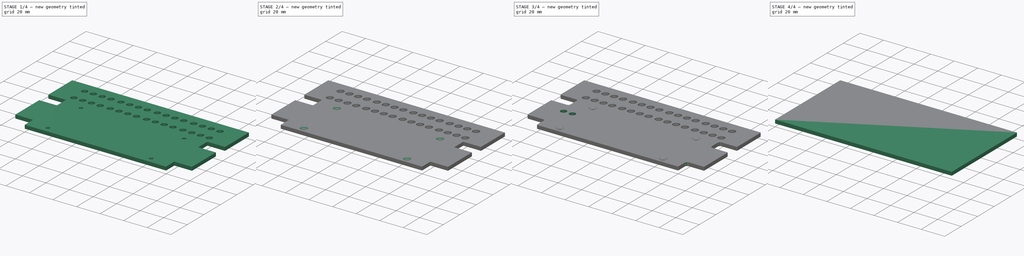
[diagram: build sequence overview — one tinted view per stage of 4, left to right]
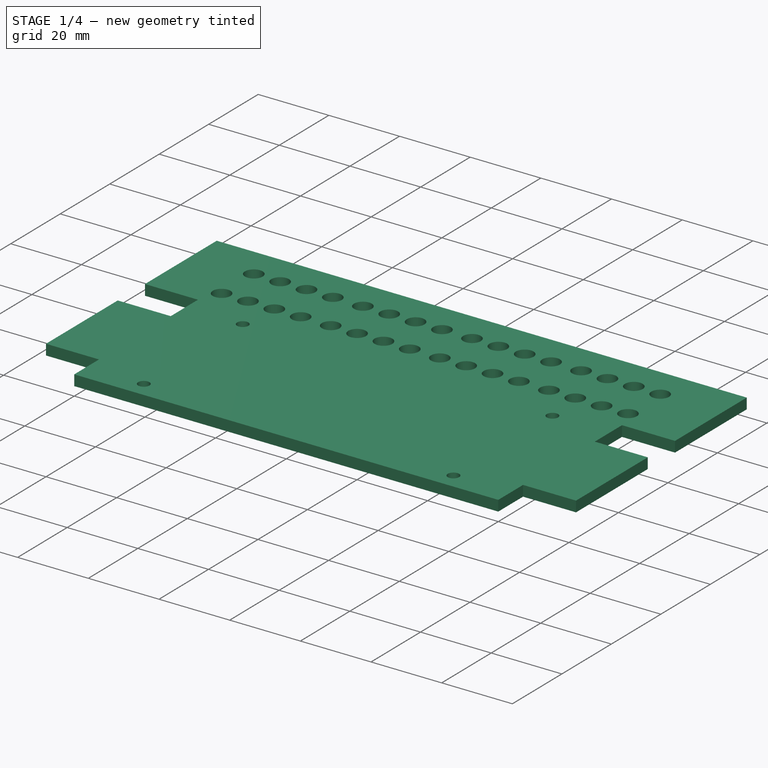
[diagram: stage 1 of 4 — iso view after this stage's code; geometry added in this stage tinted green]
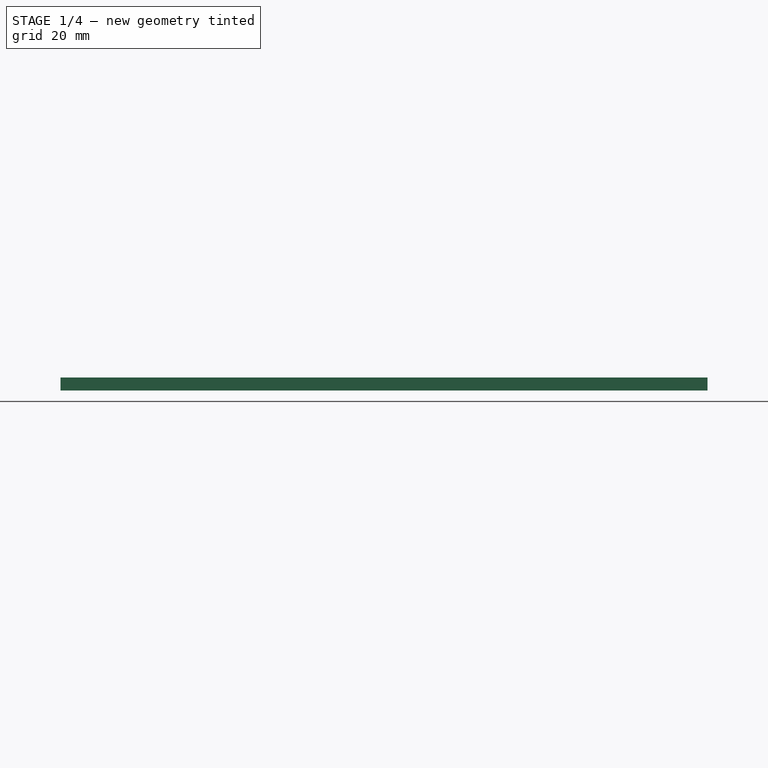
[diagram: stage 1 of 4 — front view after this stage's code; geometry added in this stage tinted green]
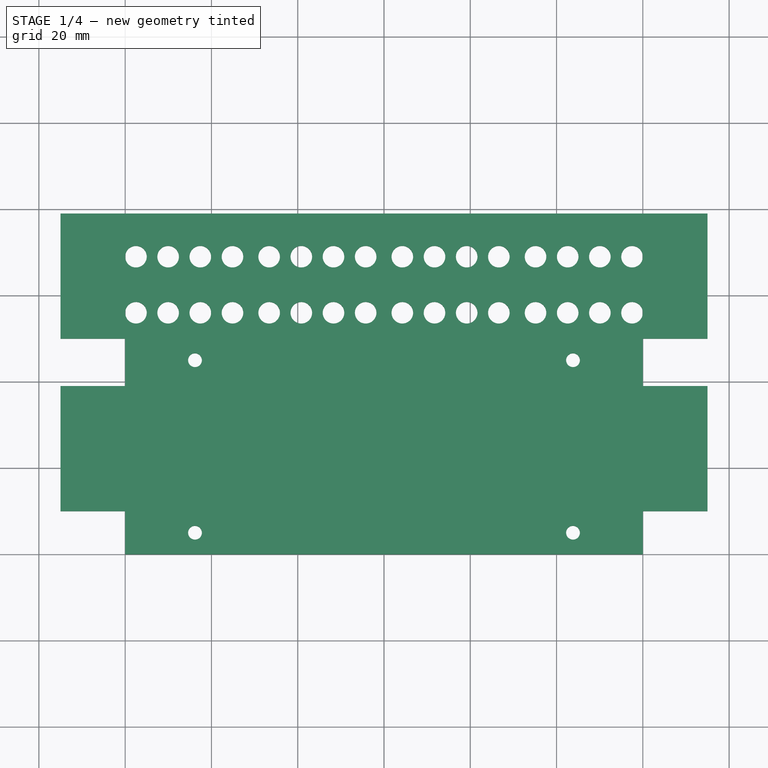
[diagram: stage 1 of 4 — top view after this stage's code; geometry added in this stage tinted green]
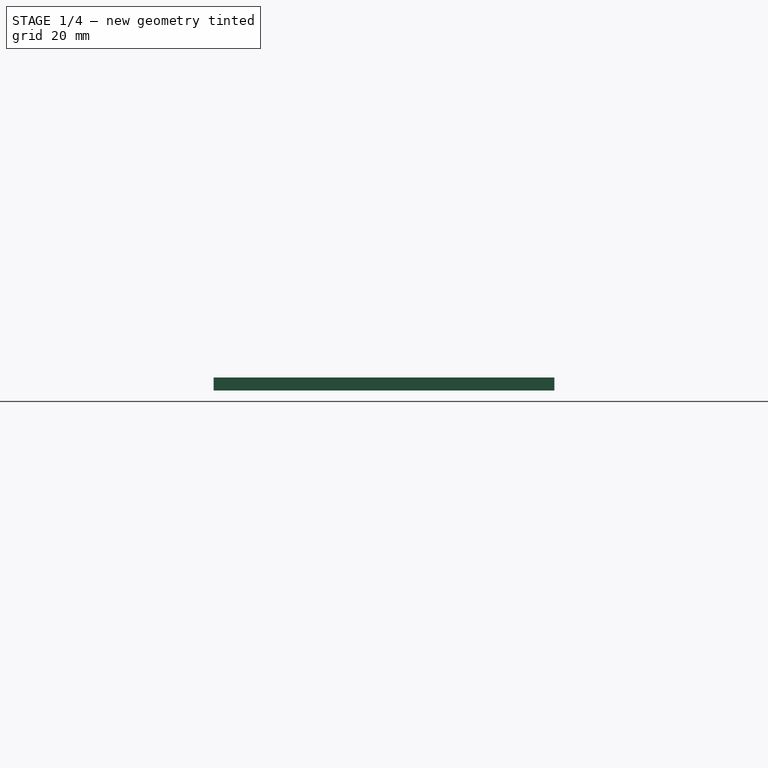
[diagram: stage 1 of 4 — right view after this stage's code; geometry added in this stage tinted green]
FCSTD DOCUMENT  (FreeCAD 0.19R23141 (Git))
Label: alu-panel
License: All rights reserved
LicenseURL: http://en.wikipedia.org/wiki/All_rights_reserved
objects: Sketcher::SketchObject×5, Path::FeaturePython×5, PartDesign::Pocket×4, PartDesign::LinearPattern×2, PartDesign::Fillet×2, Part::FeaturePython×2, PartDesign::Pad×1, PartDesign::Chamfer×1, App::FeaturePython×1, PartDesign::Body×1, App::DocumentObjectGroup×1, Path::FeatureCompoundPython×1
note: 29 computed .brp shape members not serialized (recipe doc carries the construction recipe); baked Part::Feature solids carry a one-line shape summary decoded from their .brp

FEATURE [Sketcher::SketchObject] Sketch
  MapMode = 5
  Support = -> [XY_Plane]
  sketch-geometry (20):
    g0: LineSegment StartX=-75 StartY=39 StartZ=0 EndX=-75 EndY=10 EndZ=0
    g1: LineSegment StartX=-75 StartY=10 StartZ=0 EndX=-60 EndY=10 EndZ=0
    g2: LineSegment StartX=-60 StartY=10 StartZ=0 EndX=-60 EndY=0 EndZ=0
    g3: LineSegment StartX=-60 StartY=0 StartZ=0 EndX=60 EndY=0 EndZ=0
    g4: LineSegment StartX=60 StartY=0 StartZ=0 EndX=60 EndY=10 EndZ=0
    g5: LineSegment StartX=60 StartY=10 StartZ=0 EndX=75 EndY=10 EndZ=0
    g6: LineSegment StartX=75 StartY=10 StartZ=0 EndX=75 EndY=39 EndZ=0
    g7: Circle CenterX=-43.815 CenterY=5 CenterZ=0 NormalX=0 NormalY=0 NormalZ=1 AngleXU=0 Radius=1.6
    g8: Circle CenterX=43.815 CenterY=5 CenterZ=0 NormalX=0 NormalY=0 NormalZ=1 AngleXU=0 Radius=1.6
    g9: LineSegment StartX=-75 StartY=39 StartZ=0 EndX=-60 EndY=39 EndZ=0
    g10: LineSegment StartX=-60 StartY=39 StartZ=0 EndX=-60 EndY=50 EndZ=0
    g11: LineSegment StartX=-60 StartY=50 StartZ=0 EndX=-75 EndY=50 EndZ=0
    g12: LineSegment StartX=-75 StartY=50 StartZ=0 EndX=-75 EndY=79 EndZ=0
    g13: LineSegment StartX=-75 StartY=79 StartZ=0 EndX=75 EndY=79 EndZ=0
    g14: LineSegment StartX=75 StartY=79 StartZ=0 EndX=75 EndY=50 EndZ=0
    g15: LineSegment StartX=75 StartY=50 StartZ=0 EndX=60 EndY=50 EndZ=0
    g16: LineSegment StartX=60 StartY=50 StartZ=0 EndX=60 EndY=39 EndZ=0
    g17: LineSegment StartX=60 StartY=39 StartZ=0 EndX=75 EndY=39 EndZ=0
    g18: Circle CenterX=-43.815 CenterY=45 CenterZ=0 NormalX=0 NormalY=0 NormalZ=1 AngleXU=0 Radius=1.6
    g19: Circle CenterX=43.815 CenterY=45 CenterZ=0 NormalX=0 NormalY=0 NormalZ=1 AngleXU=0 Radius=1.6
  constraints (55):
    c: Vertical(g0)
    c: Coincident(g0,g1)
    c: Horizontal(g1)
    c: Coincident(g1,g2)
    c: PointOnObject(g2,g-1)
    c: Vertical(g2)
    c: Coincident(g2,g3)
    c: PointOnObject(g3,g-1)
    c: Coincident(g3,g4)
    c: Vertical(g4)
    c: Coincident(g4,g5)
    c: Coincident(g5,g6)
    c: Symmetric(g1,g4,g-2)
    c: Symmetric(g0,g5,g-2)
    c: DistanceY(g-1,g0) = 39
    c: DistanceX(g0,g6) = 150
    c: Equal(g7,g8)
    c: Symmetric(g7,g8,g-2)
    c: Radius(g7) = 1.6
    c: DistanceX(g7,g8) = 87.63
    c: DistanceY(g2,g7) = 5
    c: DistanceY(g2,g2) = 10
    c: DistanceX(g1,g4) = 120
    c: DistanceX(g0,g7) = 31.185
    c: DistanceX(g0,g8) = 118.815
    c: Symmetric(g6,g0,g-2)
    c: Coincident(g0,g9)
    c: Horizontal(g9)
    c: Coincident(g9,g10)
    c: Vertical(g10)
    c: Coincident(g10,g11)
    c: Horizontal(g11)
    c: Coincident(g11,g12)
    c: Vertical(g12)
    c: Coincident(g12,g13)
    c: Horizontal(g13)
    c: Coincident(g13,g14)
    c: Vertical(g14)
    c: Coincident(g14,g15)
    c: Coincident(g15,g16)
    c: Coincident(g16,g17)
    c: Coincident(g17,g6)
    c: Vertical(g16)
    c: Horizontal(g15)
    c: Symmetric(g9,g16,g-2)
    c: Equal(g9,g1)
    c: Symmetric(g14,g11,g-2)
    c: Equal(g11,g9)
    c: Equal(g12,g0)
    c: DistanceY(g-1,g12) = 79
    c: Equal(g19,g18)
    c: Equal(g18,g7)
    c: Vertical(g18,g7)
    c: Symmetric(g19,g18,g-2)
    c: DistanceY(g18,g10) = 5
FEATURE [PartDesign::Pad] Pad
  Direction = (1,1,1)
  Length = 3
  Length2 = 100
  Profile = -> Sketch
  Refine = true
  Type = 0
FEATURE [Sketcher::SketchObject] Sketch001
  ExternalGeometry = -> [Pad]
  MapMode = 5
  Placement = pos=(0,0,3) rot=(0,0,1;0rad)
  Support = -> [Pad]
  sketch-geometry (31):
    g0: Circle CenterX=-57.5 CenterY=69 CenterZ=0 NormalX=0 NormalY=0 NormalZ=1 AngleXU=0 Radius=2.5
    g1: Circle CenterX=57.5 CenterY=69 CenterZ=0 NormalX=0 NormalY=0 NormalZ=1 AngleXU=0 Radius=2.5
    g2: Circle CenterX=-50.0417 CenterY=69 CenterZ=0 NormalX=0 NormalY=0 NormalZ=1 AngleXU=0 Radius=2.5
    g3: Circle CenterX=-42.5833 CenterY=69 CenterZ=0 NormalX=0 NormalY=0 NormalZ=1 AngleXU=0 Radius=2.5
    g4: Circle CenterX=-35.125 CenterY=69 CenterZ=0 NormalX=0 NormalY=0 NormalZ=1 AngleXU=0 Radius=2.5
    g5: Circle CenterX=-26.625 CenterY=69 CenterZ=0 NormalX=0 NormalY=0 NormalZ=1 AngleXU=0 Radius=2.5
    g6: Circle CenterX=-19.1667 CenterY=69 CenterZ=0 NormalX=0 NormalY=0 NormalZ=1 AngleXU=0 Radius=2.5
    g7: Circle CenterX=-11.7083 CenterY=69 CenterZ=0 NormalX=0 NormalY=0 NormalZ=1 AngleXU=0 Radius=2.5
    g8: Circle CenterX=-4.25 CenterY=69 CenterZ=0 NormalX=0 NormalY=0 NormalZ=1 AngleXU=0 Radius=2.5
    g9: Circle CenterX=4.25 CenterY=69 CenterZ=0 NormalX=0 NormalY=0 NormalZ=1 AngleXU=0 Radius=2.5
    g10: Circle CenterX=11.7083 CenterY=69 CenterZ=0 NormalX=0 NormalY=0 NormalZ=1 AngleXU=0 Radius=2.5
    g11: Circle CenterX=19.1667 CenterY=69 CenterZ=0 NormalX=0 NormalY=0 NormalZ=1 AngleXU=0 Radius=2.5
    g12: Circle CenterX=26.625 CenterY=69 CenterZ=0 NormalX=0 NormalY=0 NormalZ=1 AngleXU=0 Radius=2.5
    g13: Circle CenterX=35.125 CenterY=69 CenterZ=0 NormalX=0 NormalY=0 NormalZ=1 AngleXU=0 Radius=2.5
    g14: Circle CenterX=42.5833 CenterY=69 CenterZ=0 NormalX=0 NormalY=0 NormalZ=1 AngleXU=0 Radius=2.5
    g15: Circle CenterX=50.0417 CenterY=69 CenterZ=0 NormalX=0 NormalY=0 NormalZ=1 AngleXU=0 Radius=2.5
    g16: LineSegment [constr] StartX=-57.5 StartY=69 StartZ=0 EndX=-50.0417 EndY=69 EndZ=0
    g17: LineSegment [constr] StartX=-50.0417 StartY=69 StartZ=0 EndX=-42.5833 EndY=69 EndZ=0
    g18: LineSegment [constr] StartX=-42.5833 StartY=69 StartZ=0 EndX=-35.125 EndY=69 EndZ=0
    g19: LineSegment [constr] StartX=-35.125 StartY=69 StartZ=0 EndX=-26.625 EndY=69 EndZ=0
    g20: LineSegment [constr] StartX=-26.625 StartY=69 StartZ=0 EndX=-19.1667 EndY=69 EndZ=0
    g21: LineSegment [constr] StartX=-19.1667 StartY=69 StartZ=0 EndX=-11.7083 EndY=69 EndZ=0
    g22: LineSegment [constr] StartX=-11.7083 StartY=69 StartZ=0 EndX=-4.25 EndY=69 EndZ=0
    g23: LineSegment [constr] StartX=-4.25 StartY=69 StartZ=0 EndX=4.25 EndY=69 EndZ=0
    g24: LineSegment [constr] StartX=4.25 StartY=69 StartZ=0 EndX=11.7083 EndY=69 EndZ=0
    g25: LineSegment [constr] StartX=11.7083 StartY=69 StartZ=0 EndX=19.1667 EndY=69 EndZ=0
    g26: LineSegment [constr] StartX=19.1667 StartY=69 StartZ=0 EndX=26.625 EndY=69 EndZ=0
    g27: LineSegment [constr] StartX=26.625 StartY=69 StartZ=0 EndX=35.125 EndY=69 EndZ=0
    g28: LineSegment [constr] StartX=35.125 StartY=69 StartZ=0 EndX=42.5833 EndY=69 EndZ=0
    g29: LineSegment [constr] StartX=42.5833 StartY=69 StartZ=0 EndX=50.0417 EndY=69 EndZ=0
    g30: LineSegment [constr] StartX=50.0417 StartY=69 StartZ=0 EndX=57.5 EndY=69 EndZ=0
  constraints (78):
    c: Symmetric(g1,g0,g-2)
    c: DistanceX(g0,g1) = 115
    c: Equal(g1,g15)
    c: Equal(g15,g14)
    c: Equal(g14,g13)
    c: Equal(g13,g12)
    c: Equal(g12,g11)
    c: Equal(g11,g10)
    c: Equal(g10,g9)
    c: Equal(g9,g8)
    c: Equal(g8,g7)
    c: Equal(g7,g6)
    c: Equal(g6,g5)
    c: Equal(g5,g4)
    c: Equal(g4,g3)
    c: Equal(g3,g2)
    c: Equal(g2,g0)
    c: Coincident(g16,g0)
    c: Coincident(g16,g2)
    c: Horizontal(g16)
    c: Coincident(g17,g2)
    c: Coincident(g17,g3)
    c: Horizontal(g17)
    c: Coincident(g17,g18)
    c: Coincident(g18,g4)
    c: Coincident(g18,g19)
    c: Coincident(g19,g5)
    c: Coincident(g19,g20)
    c: Coincident(g20,g6)
    c: Coincident(g20,g21)
    c: Coincident(g21,g7)
    c: Coincident(g21,g22)
    c: Coincident(g22,g8)
    c: Coincident(g22,g23)
    c: Coincident(g23,g9)
    c: Coincident(g23,g24)
    c: Coincident(g24,g10)
    c: Coincident(g24,g25)
    c: Coincident(g25,g11)
    c: Coincident(g25,g26)
    c: Coincident(g26,g12)
    c: Coincident(g26,g27)
    c: Coincident(g27,g13)
    c: Horizontal(g27)
    c: Coincident(g27,g28)
    c: Coincident(g28,g14)
    c: Coincident(g28,g29)
    c: Coincident(g29,g15)
    c: Coincident(g29,g30)
    c: Coincident(g30,g1)
    c: Horizontal(g30)
    c: Equal(g16,g17)
    c: Equal(g17,g18)
    c: Equal(g20,g21)
    c: Equal(g21,g22)
    c: Equal(g24,g25)
    c: Equal(g25,g26)
    c: Equal(g28,g29)
    c: Equal(g29,g30)
    c: Horizontal(g18)
    c: Horizontal(g20)
    c: Horizontal(g19)
    c: Horizontal(g22)
    c: Horizontal(g21)
    c: Horizontal(g23)
    c: Horizontal(g24)
    c: Horizontal(g25)
    c: Horizontal(g26)
    c: Horizontal(g28)
    c: Equal(g16,g20)
    c: Equal(g20,g24)
    c: Equal(g24,g28)
    c: Equal(g19,g23)
    c: Equal(g23,g27)
    c: DistanceX(g19,g19) = 8.5
    c: Radius(g0) = 2.5
    c: DistanceX(g16,g16) = 7.45833
    c: DistanceY(g0,g-3) = 10
FEATURE [PartDesign::Pocket] Pocket
  BaseFeature = -> Pad
  Length = 5
  Length2 = 100
  Profile = -> Sketch001
  Refine = true
  Type = 1
FEATURE [PartDesign::LinearPattern] LinearPattern
  BaseFeature = -> Pocket
  Direction = -> Sketch001 [V_Axis]
  Length = 13
  Occurrences = 2
  Originals = -> [Pocket]
  Refine = true
  Reversed = true
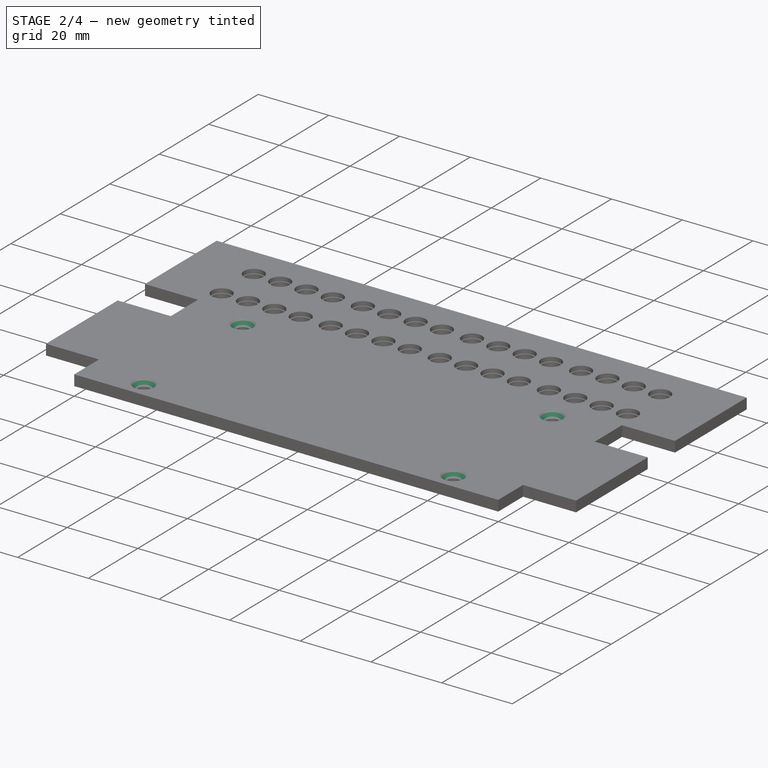
[diagram: stage 2 of 4 — iso view after this stage's code; geometry added in this stage tinted green]
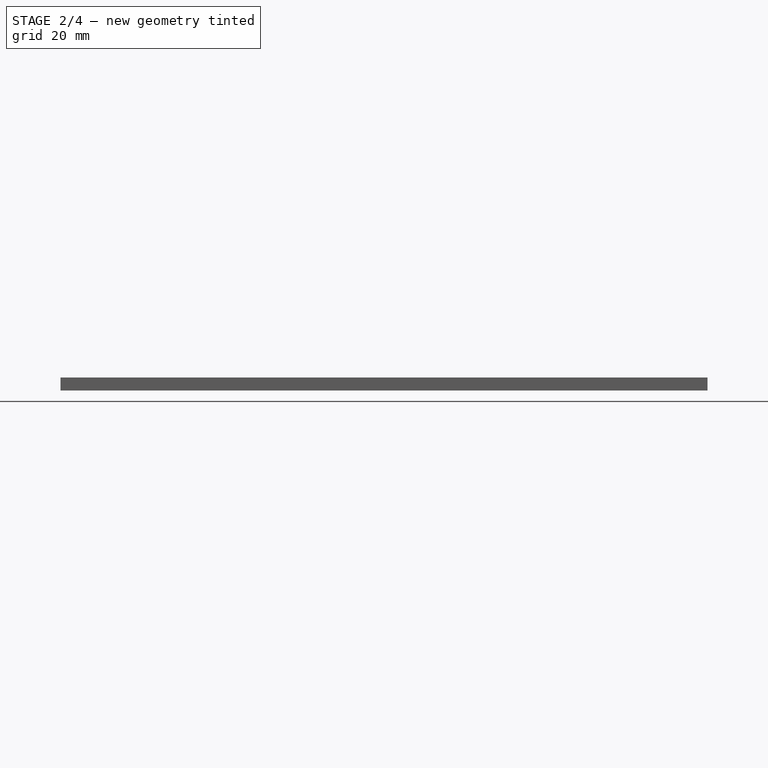
[diagram: stage 2 of 4 — front view after this stage's code; geometry added in this stage tinted green]
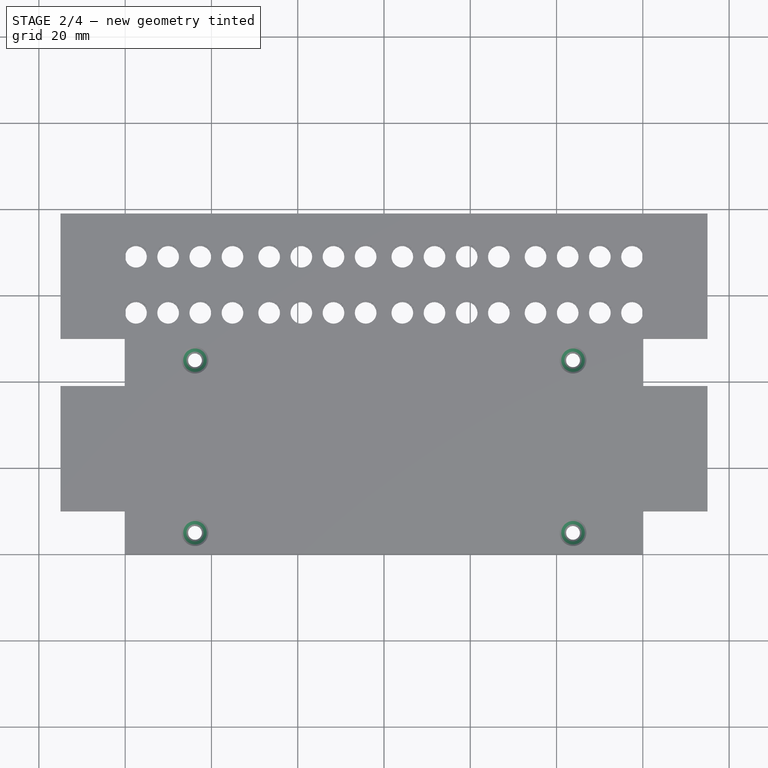
[diagram: stage 2 of 4 — top view after this stage's code; geometry added in this stage tinted green]
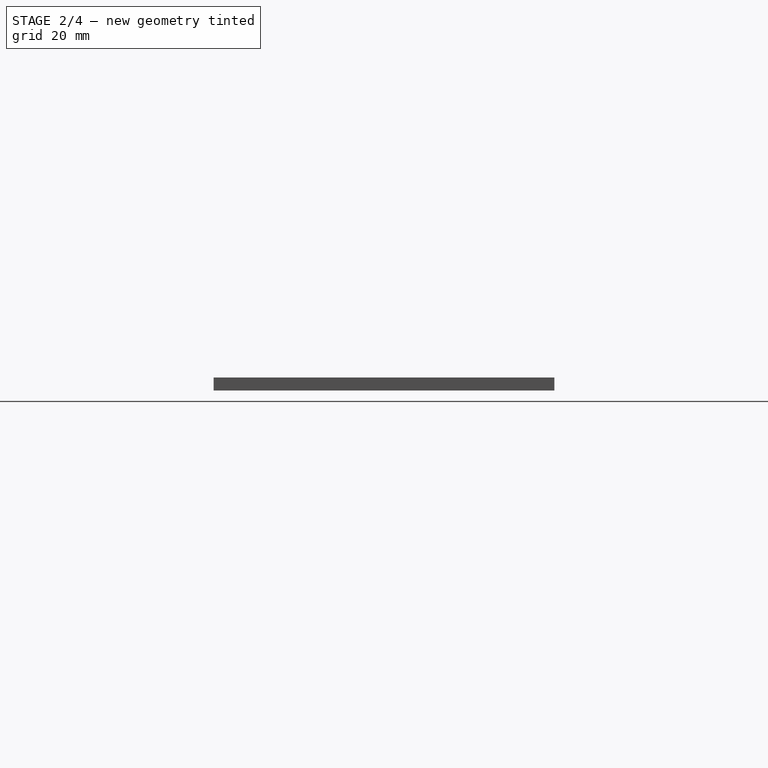
[diagram: stage 2 of 4 — right view after this stage's code; geometry added in this stage tinted green]
FEATURE [Sketcher::SketchObject] Sketch002
  ExternalGeometry = -> [Pad]
  MapMode = 5
  Placement = pos=(0,0,3) rot=(0,0,1;0rad)
  Support = -> [Pad]
  sketch-geometry (31):
    g0: Circle CenterX=-57.5 CenterY=69 CenterZ=0 NormalX=0 NormalY=0 NormalZ=1 AngleXU=0 Radius=2.8
    g1: Circle CenterX=-50.0417 CenterY=69 CenterZ=0 NormalX=0 NormalY=0 NormalZ=1 AngleXU=0 Radius=2.8
    g2: Circle CenterX=-42.5833 CenterY=69 CenterZ=0 NormalX=0 NormalY=0 NormalZ=1 AngleXU=0 Radius=2.8
    g3: Circle CenterX=-35.125 CenterY=69 CenterZ=0 NormalX=0 NormalY=0 NormalZ=1 AngleXU=0 Radius=2.8
    g4: Circle CenterX=-26.625 CenterY=69 CenterZ=0 NormalX=0 NormalY=0 NormalZ=1 AngleXU=0 Radius=2.8
    g5: Circle CenterX=-19.1667 CenterY=69 CenterZ=0 NormalX=0 NormalY=0 NormalZ=1 AngleXU=0 Radius=2.8
    g6: Circle CenterX=-11.7083 CenterY=69 CenterZ=0 NormalX=0 NormalY=0 NormalZ=1 AngleXU=0 Radius=2.8
    g7: Circle CenterX=-4.25 CenterY=69 CenterZ=0 NormalX=0 NormalY=0 NormalZ=1 AngleXU=0 Radius=2.8
    g8: Circle CenterX=4.25 CenterY=69 CenterZ=0 NormalX=0 NormalY=0 NormalZ=1 AngleXU=0 Radius=2.8
    g9: Circle CenterX=11.7083 CenterY=69 CenterZ=0 NormalX=0 NormalY=0 NormalZ=1 AngleXU=0 Radius=2.8
    g10: Circle CenterX=19.1667 CenterY=69 CenterZ=0 NormalX=0 NormalY=0 NormalZ=1 AngleXU=0 Radius=2.8
    g11: Circle CenterX=26.625 CenterY=69 CenterZ=0 NormalX=0 NormalY=0 NormalZ=1 AngleXU=0 Radius=2.8
    g12: Circle CenterX=35.125 CenterY=69 CenterZ=0 NormalX=0 NormalY=0 NormalZ=1 AngleXU=0 Radius=2.8
    g13: Circle CenterX=42.5833 CenterY=69 CenterZ=0 NormalX=0 NormalY=0 NormalZ=1 AngleXU=0 Radius=2.8
    g14: Circle CenterX=50.0417 CenterY=69 CenterZ=0 NormalX=0 NormalY=0 NormalZ=1 AngleXU=0 Radius=2.8
    g15: Circle CenterX=57.5 CenterY=69 CenterZ=0 NormalX=0 NormalY=0 NormalZ=1 AngleXU=0 Radius=2.8
    g16: LineSegment [constr] StartX=-57.5 StartY=69 StartZ=0 EndX=-50.0417 EndY=69 EndZ=0
    g17: LineSegment [constr] StartX=-50.0417 StartY=69 StartZ=0 EndX=-42.5833 EndY=69 EndZ=0
    g18: LineSegment [constr] StartX=-42.5833 StartY=69 StartZ=0 EndX=-35.125 EndY=69 EndZ=0
    g19: LineSegment [constr] StartX=-26.625 StartY=69 StartZ=0 EndX=-19.1667 EndY=69 EndZ=0
    g20: LineSegment [constr] StartX=-19.1667 StartY=69 StartZ=0 EndX=-11.7083 EndY=69 EndZ=0
    g21: LineSegment [constr] StartX=-11.7083 StartY=69 StartZ=0 EndX=-4.25 EndY=69 EndZ=0
    g22: LineSegment [constr] StartX=4.25 StartY=69 StartZ=0 EndX=11.7083 EndY=69 EndZ=0
    g23: LineSegment [constr] StartX=11.7083 StartY=69 StartZ=0 EndX=19.1667 EndY=69 EndZ=0
    g24: LineSegment [constr] StartX=19.1667 StartY=69 StartZ=0 EndX=26.625 EndY=69 EndZ=0
    g25: LineSegment [constr] StartX=35.125 StartY=69 StartZ=0 EndX=42.5833 EndY=69 EndZ=0
    g26: LineSegment [constr] StartX=42.5833 StartY=69 StartZ=0 EndX=50.0417 EndY=69 EndZ=0
    g27: LineSegment [constr] StartX=50.0417 StartY=69 StartZ=0 EndX=57.5 EndY=69 EndZ=0
    g28: LineSegment [constr] StartX=-35.125 StartY=69 StartZ=0 EndX=-26.625 EndY=69 EndZ=0
    g29: LineSegment [constr] StartX=-4.25 StartY=69 StartZ=0 EndX=4.25 EndY=69 EndZ=0
    g30: LineSegment [constr] StartX=26.625 StartY=69 StartZ=0 EndX=35.125 EndY=69 EndZ=0
  constraints (85):
    c: Equal(g1,g0)
    c: Equal(g0,g2)
    c: Equal(g2,g3)
    c: Radius(g0) = 2.8
    c: Horizontal(g0,g1)
    c: Horizontal(g1,g2)
    c: Horizontal(g2,g3)
    c: Equal(g5,g4)
    c: Equal(g4,g6)
    c: Equal(g6,g7)
    c: Equal(g0,g4) = 2.5
    c: Horizontal(g4,g5)
    c: Horizontal(g5,g6)
    c: Horizontal(g6,g7)
    c: Equal(g9,g8)
    c: Equal(g8,g10)
    c: Equal(g10,g11)
    c: Equal(g0,g8) = 2.5
    c: Horizontal(g8,g9)
    c: Horizontal(g9,g10)
    c: Horizontal(g10,g11)
    c: Equal(g13,g12)
    c: Equal(g12,g14)
    c: Equal(g14,g15)
    c: Equal(g8,g12) = 2.5
    c: Horizontal(g12,g13)
    c: Horizontal(g13,g14)
    c: Horizontal(g14,g15)
    c: Horizontal(g0,g4)
    c: Horizontal(g4,g8)
    c: Coincident(g16,g0)
    c: Coincident(g16,g1)
    c: Coincident(g17,g1)
    c: Coincident(g17,g2)
    c: Coincident(g18,g2)
    c: Coincident(g18,g3)
    c: Coincident(g19,g4)
    c: Coincident(g19,g5)
    c: Coincident(g20,g5)
    c: Coincident(g20,g6)
    c: Coincident(g21,g7)
    c: Coincident(g22,g8)
    c: Coincident(g22,g9)
    c: Coincident(g23,g9)
    c: Coincident(g23,g10)
    c: Coincident(g24,g10)
    c: Coincident(g24,g11)
    c: Coincident(g25,g12)
    c: Coincident(g25,g13)
    c: Coincident(g26,g13)
    c: Coincident(g26,g14)
    c: Coincident(g27,g14)
    c: Coincident(g27,g15)
    c: Symmetric(g0,g15,g-2)
    c: Equal(g16,g17)
    c: Equal(g17,g18)
    c: Equal(g19,g20)
    c: Equal(g20,g21)
    c: Equal(g22,g23)
    c: Equal(g23,g24)
    c: Equal(g25,g26)
    c: Equal(g26,g27)
    c: DistanceX(g0,g15) = 115
    c: Coincident(g6,g21)
    c: Coincident(g28,g3)
    c: Coincident(g28,g4)
    c: Coincident(g29,g7)
    c: Coincident(g29,g8)
    c: Coincident(g30,g11)
    c: Coincident(g30,g12)
    c: Equal(g30,g29)
    c: Equal(g29,g28)
    c: DistanceX(g28,g28) = 8.5
    c: DistanceX(g23,g23) = 7.45833
    c: Equal(g18,g21)
    c: Equal(g21,g16)
    c: Equal(g21,g20)
    c: Equal(g21,g18)
    c: Equal(g25,g27)
    c: Equal(g25,g17)
    c: Equal(g21,g19)
    c: Equal(g21,g20)
    c: Equal(g21,g18)
    c: Equal(g21,g22)
    c: DistanceY(g0,g-3) = 10
FEATURE [PartDesign::Pocket] Pocket001
  BaseFeature = -> LinearPattern
  Length = 1.2
  Length2 = 100
  Profile = -> Sketch002
  Refine = true
  Type = 0
FEATURE [PartDesign::LinearPattern] LinearPattern001
  BaseFeature = -> Pocket001
  Direction = -> Sketch002 [V_Axis]
  Length = 13
  Occurrences = 2
  Originals = -> [Pocket001]
  Refine = true
  Reversed = true
FEATURE [PartDesign::Chamfer] Chamfer
  Angle = 45
  Base = -> LinearPattern001 [Edge75,Edge73,Edge74,Edge92]
  BaseFeature = -> LinearPattern001
  ChamferType = 0
  FlipDirection = false
  Refine = true
  Size = 1.5
  Size2 = 1
  SupportTransform = false
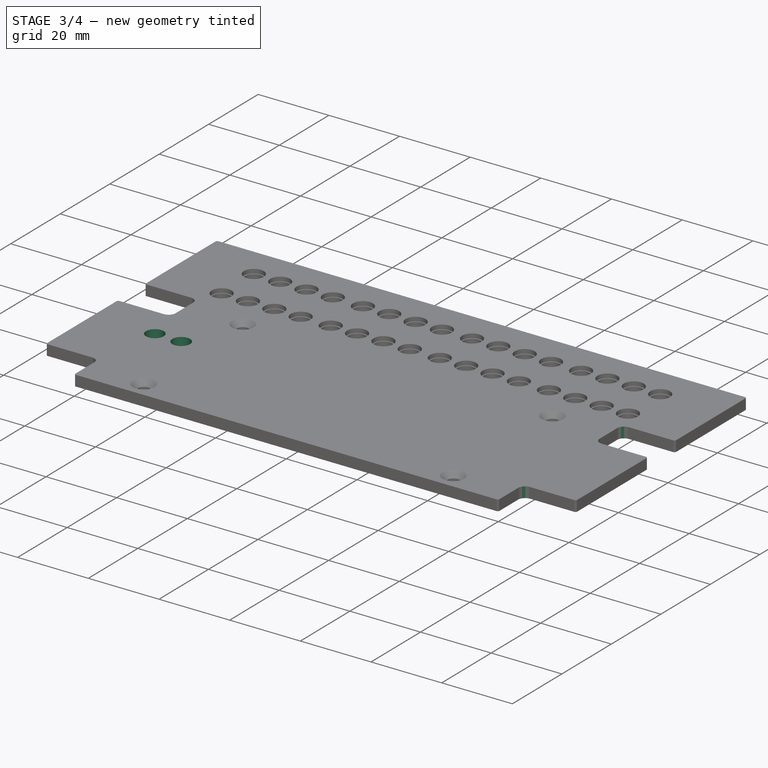
[diagram: stage 3 of 4 — iso view after this stage's code; geometry added in this stage tinted green]
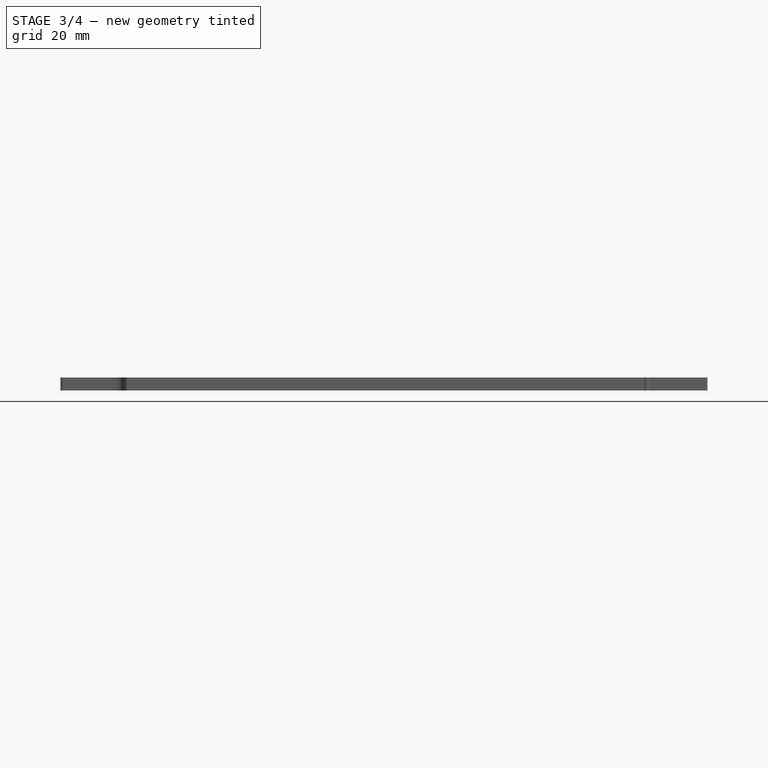
[diagram: stage 3 of 4 — front view after this stage's code; geometry added in this stage tinted green]
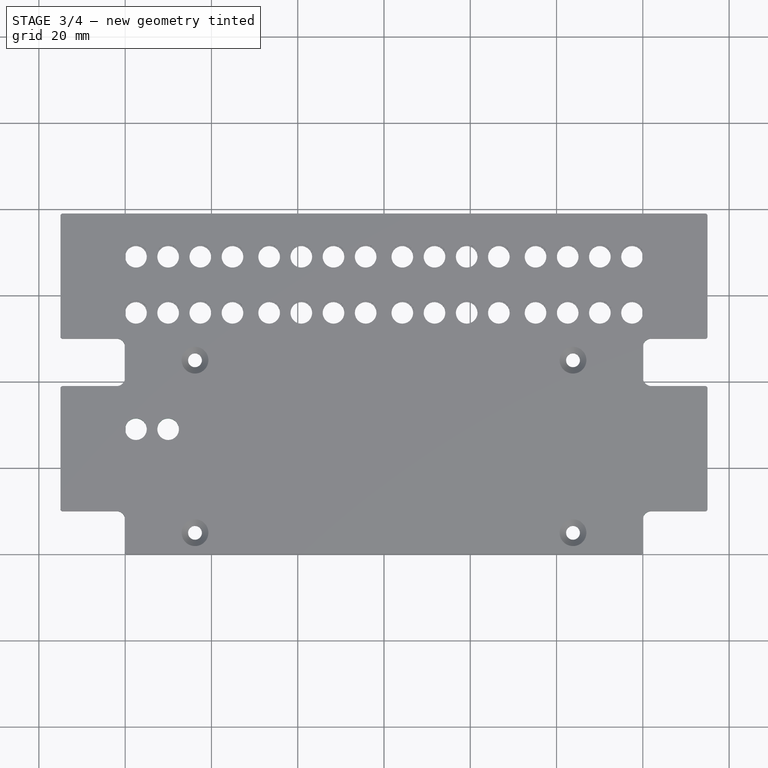
[diagram: stage 3 of 4 — top view after this stage's code; geometry added in this stage tinted green]
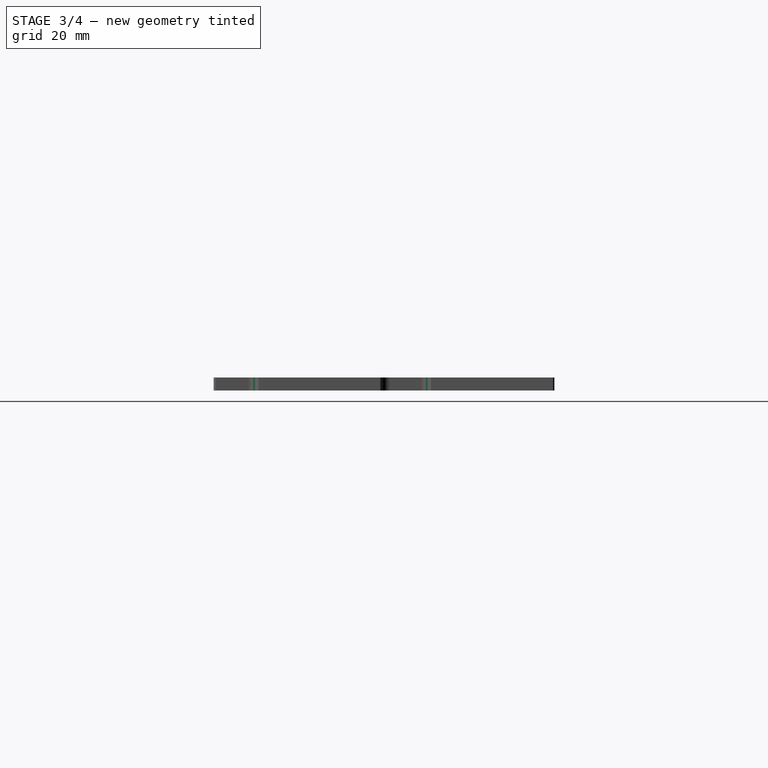
[diagram: stage 3 of 4 — right view after this stage's code; geometry added in this stage tinted green]
FEATURE [PartDesign::Fillet] Fillet
  Base = -> Chamfer [Edge56,Edge74,Edge80,Edge60,Edge62,Edge84]
  BaseFeature = -> Chamfer
  Radius = 2
  Refine = true
  SupportTransform = false
FEATURE [PartDesign::Fillet] Fillet001
  Base = -> Fillet [Edge61,Edge64,Edge75,Edge78,Edge77,Edge80,Edge93,Edge96,Edge86,Edge82]
  BaseFeature = -> Fillet
  Radius = 0.5
  Refine = true
  SupportTransform = false
FEATURE [App::FeaturePython] SetupSheet  # Path/CAM operation (typed FeaturePython)
  ClearanceHeightExpression = OpStockZMax+SetupSheet.ClearanceHeightOffset
  ClearanceHeightOffset = 5
  CoolantMode = 0
  CoolantModes = None | Flood | Mist
  FinalDepthExpression = OpFinalDepth
  HorizRapid = 0
  SafeHeightExpression = OpStockZMax+SetupSheet.SafeHeightOffset
  SafeHeightOffset = 3
  StartDepthExpression = OpStartDepth
  StepDownExpression = OpToolDiameter
  VertRapid = 0
FEATURE [Path::FeaturePython] Default_Tool  label="TC: Default Tool"  # Path/CAM operation (typed FeaturePython)
  HorizFeed = 3.33333
  HorizRapid = 0
  SpindleDir = 0
  SpindleSpeed = 24000
  ToolNumber = 1
  VertFeed = 0.833333
  VertRapid = 0
  expr: VertRapid = SetupSheet.VertRapid
  expr: HorizRapid = SetupSheet.HorizRapid
FEATURE [Sketcher::SketchObject] Sketch003
  ExternalGeometry = -> [Fillet001]
  MapMode = 5
  Placement = pos=(0,0,3) rot=(0,0,1;0rad)
  Support = -> [Fillet001]
  sketch-geometry (2):
    g0: Circle CenterX=-57.5 CenterY=29 CenterZ=0 NormalX=0 NormalY=0 NormalZ=1 AngleXU=0 Radius=2.5
    g1: Circle CenterX=-50.0417 CenterY=29 CenterZ=0 NormalX=0 NormalY=0 NormalZ=1 AngleXU=0 Radius=2.5
  constraints (6):
    c: Equal(g-3,g0)
    c: Equal(g0,g1)
    c: Vertical(g0,g-3)
    c: Vertical(g-4,g1)
    c: Horizontal(g0,g1)
    c: DistanceY(g0,g-3) = 40
FEATURE [PartDesign::Pocket] Pocket002
  BaseFeature = -> Fillet001
  Length = 5
  Length2 = 100
  Profile = -> Sketch003
  Refine = true
  Type = 1
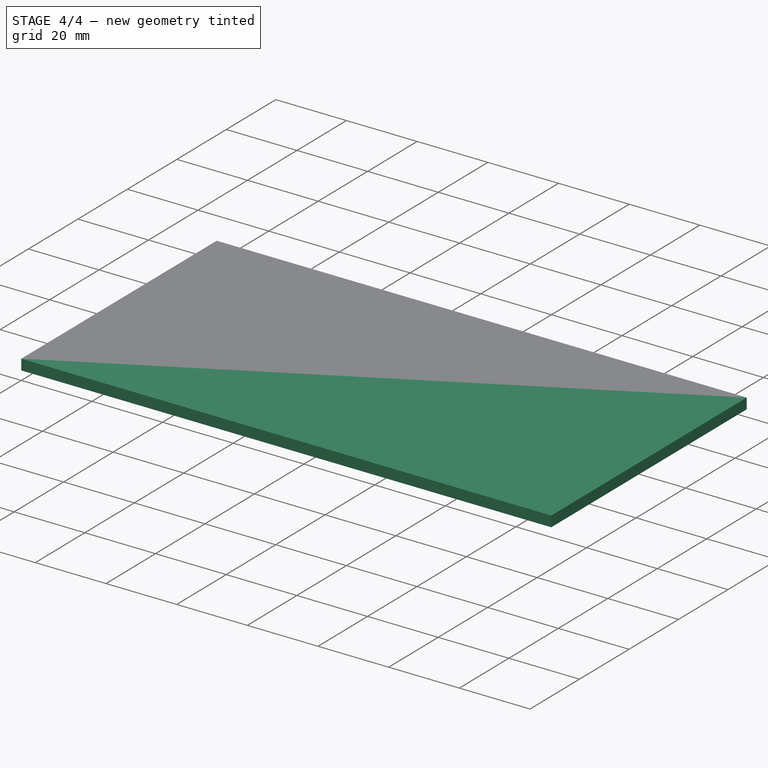
[diagram: stage 4 of 4 — iso view after this stage's code; geometry added in this stage tinted green]
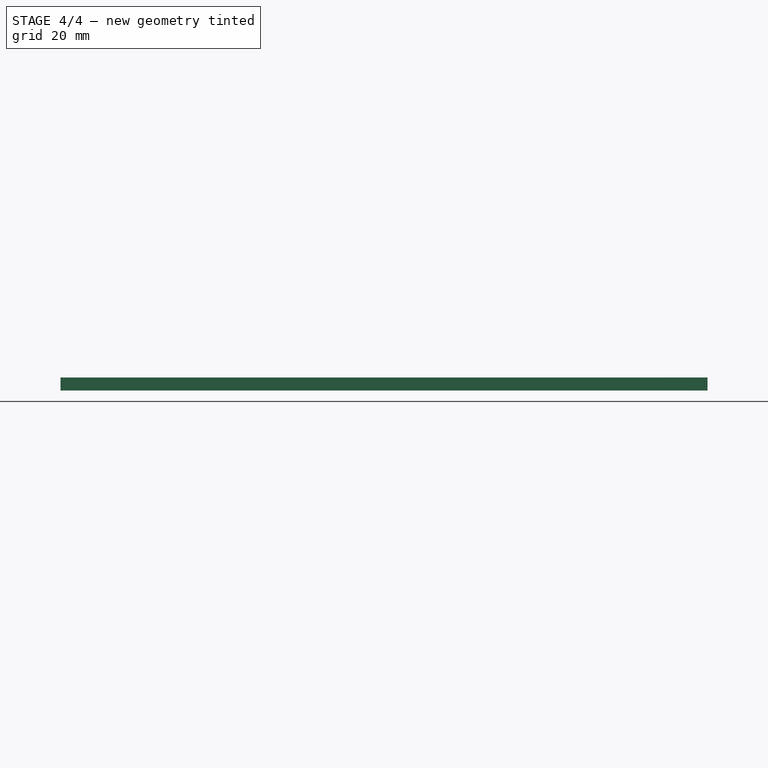
[diagram: stage 4 of 4 — front view after this stage's code; geometry added in this stage tinted green]
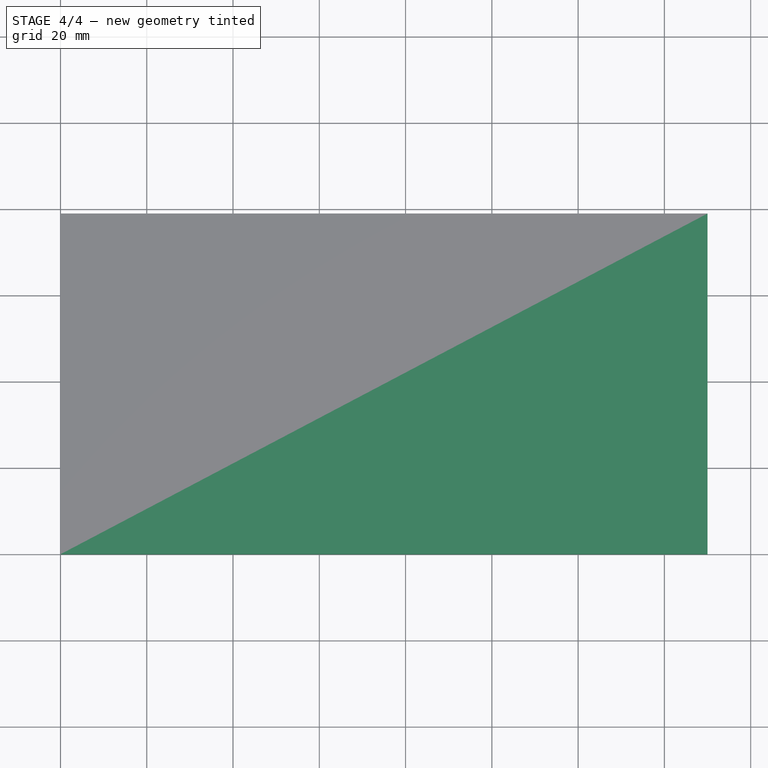
[diagram: stage 4 of 4 — top view after this stage's code; geometry added in this stage tinted green]
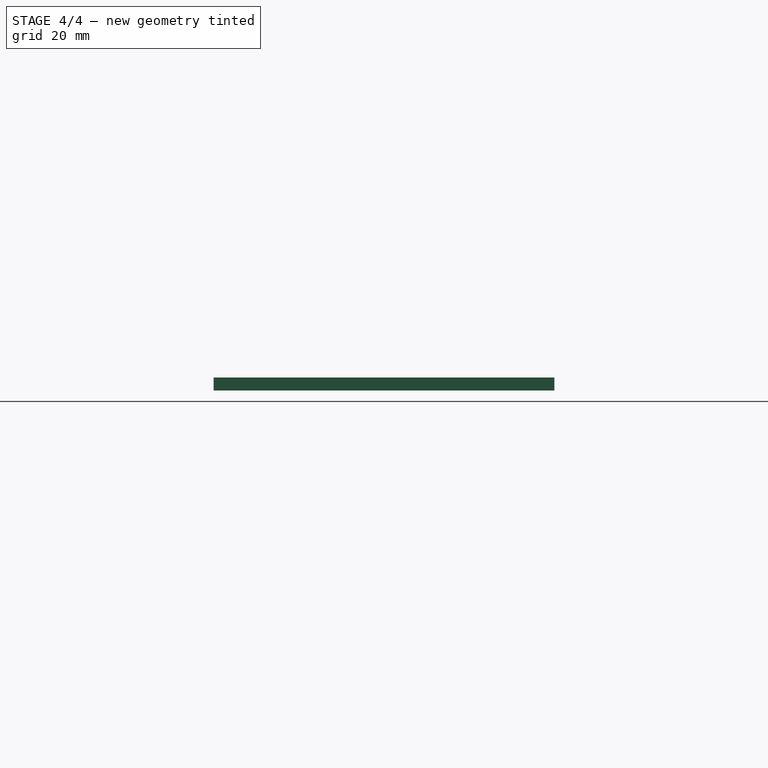
[diagram: stage 4 of 4 — right view after this stage's code; geometry added in this stage tinted green]
FEATURE [Sketcher::SketchObject] Sketch004
  ExternalGeometry = -> [Pocket002]
  MapMode = 5
  Placement = pos=(0,0,3) rot=(0,0,1;0rad)
  Support = -> [Pocket002]
  sketch-geometry (2):
    g0: Circle CenterX=-57.5 CenterY=29 CenterZ=0 NormalX=0 NormalY=0 NormalZ=1 AngleXU=0 Radius=2.8
    g1: Circle CenterX=-50.0417 CenterY=29 CenterZ=0 NormalX=0 NormalY=0 NormalZ=1 AngleXU=0 Radius=2.8
  constraints (4):
    c: Coincident(g0,g-3)
    c: Coincident(g1,g-4)
    c: Equal(g1,g0)
    c: Equal(g0,g-5)
FEATURE [PartDesign::Pocket] Pocket003
  BaseFeature = -> Pocket002
  Length = 0
  Length2 = 100
  Profile = -> Sketch004
  Refine = true
  Type = 3
  UpToFace = -> Pocket002 [Face76]
FEATURE [PartDesign::Body] Body
  Group = -> [Sketch,Pad,Sketch001,Pocket,LinearPattern,Pocket001,Sketch002,LinearPattern001,Chamfer,Fillet,Fillet001,Sketch003,Pocket002,Sketch004,Pocket003]
  Origin = -> Origin
  Tip = -> Pocket003
FEATURE [Part::FeaturePython] Clone  label="Model-Body"  # Draft clone (typed FeaturePython)
  AttacherType = Attacher::AttachEngine3D
  Fuse = false
  Objects = -> [Body]
  PathResource = Model
  Placement = pos=(75,1e-16,-3) rot=(0,0,1;0rad)
  Scale = (1,1,1)
FEATURE [App::DocumentObjectGroup] Model
  Group = -> [Clone]
FEATURE [Part::FeaturePython] Stock  # WARN: FeaturePython — macro-defined, semantics opaque (R4)
  Base = -> Model
  ExtXneg = 0
  ExtXpos = 0
  ExtYneg = 0
  ExtYpos = 0
  ExtZneg = 0
  ExtZpos = 0
  Placement = pos=(0,0,-3) rot=(0,0,1;0rad)
  StockType = FromBase
FEATURE [Path::FeaturePython] Profile  # Path/CAM operation (typed FeaturePython)
  Active = true
  AreaParams:
    Tolerance = 1e-07
    FitArcs = True
    Simplify = False
    CleanDistance = 0.0
    Accuracy = 0.01
    Unit = 1.0
    MinArcPoints = 4
    MaxArcPoints = 100
    ClipperScale = 10000000.0
    Fill = 0
    Coplanar = 0
    Reorient = True
    Outline = False
    Explode = False
    OpenMode = 0
    Deflection = 0.01
    SubjectFill = 0
    ClipFill = 0
    Offset = -2.0
    ExtraPass = 0
    Stepover = 0.0
    LastStepover = 0.0
    JoinType = 0
    EndType = 0
    MiterLimit = 2.0
    RoundPrecision = 0.0
    PocketMode = 0
    ToolRadius = 1.0
    PocketExtraOffset = 0.0
    PocketStepover = 0.0
    PocketLastStepover = 0.0
    FromCenter = False
    Angle = 45.0
    AngleShift = 0.0
    Shift = 0.0
    Thicken = False
    SectionCount = -1
    Stepdown = 1.0
    SectionOffset = 0.0
    SectionTolerance = 1e-06
    SectionMode = 2
    Project = False
  AttemptInverseAngle = true
  Base = -> [Clone]
  ClearanceHeight = 2
  CoolantMode = None
  CycleTime = 00:12:01
  Direction = 0
  EnableRotation = 0
  ExpandProfile = 0
  ExpandProfileStepOver = 100
  FinalDepth = -3.2
  HandleMultipleFeatures = 1
  InverseAngle = false
  JoinType = 0
  LimitDepthToFace = true
  MiterLimit = 0.1
  OffsetExtra = 0
  OpFinalDepth = -1.2
  OpStartDepth = 0
  OpStockZMax = 0
  OpStockZMin = -3
  OpToolDiameter = 4
  PathParams = {'orientation': 1, 'feedrate': 3.3333333333333335, 'feedrate_v': 0.8333333333333334, 'verbose': True, 'resume_height': 1.0, 'retraction': 2.0, 'return_end': True, 'preamble': False, 'start': Vector (40.36736020812257, 55.99999992660536, 2.0)}
  ReverseDirection = false
  SafeHeight = 1
  Side = 1
  StartDepth = 0
  StartPoint = (0,0,0)
  StepDown = 0.3
  ToolController = -> Default_Tool
  UseComp = true
  UseStartPoint = false
  processCircles = false
  processHoles = false
  processPerimeter = true
  expr: ClearanceHeight = 2
  expr: SafeHeight = 1
  expr: StepDown = 0.3
  expr: FinalDepth = -3.2
  expr: StartDepth = OpStartDepth
FEATURE [Path::FeaturePython] Profile001  # Path/CAM operation (typed FeaturePython)
  Active = true
  AreaParams:
    Tolerance = 1e-07
    FitArcs = True
    Simplify = False
    CleanDistance = 0.0
    Accuracy = 0.01
    Unit = 1.0
    MinArcPoints = 4
    MaxArcPoints = 100
    ClipperScale = 10000000.0
    Fill = 0
    Coplanar = 0
    Reorient = True
    Outline = False
    Explode = False
    OpenMode = 0
    Deflection = 0.01
    SubjectFill = 0
    ClipFill = 0
    Offset = -2.0
    ExtraPass = 0
    Stepover = 0.0
    LastStepover = 0.0
    JoinType = 0
    EndType = 0
    MiterLimit = 2.0
    RoundPrecision = 0.0
    PocketMode = 0
    ToolRadius = 1.0
    PocketExtraOffset = 0.0
    PocketStepover = 0.0
    PocketLastStepover = 0.0
    FromCenter = False
    Angle = 45.0
    AngleShift = 0.0
    Shift = 0.0
    Thicken = False
    SectionCount = -1
    Stepdown = 1.0
    SectionOffset = 0.0
    SectionTolerance = 1e-06
    SectionMode = 2
    Project = False
  AttemptInverseAngle = true
  Base = -> [Clone]
  ClearanceHeight = 5
  CoolantMode = None
  CycleTime = 00:12:40
  Direction = 0
  EnableRotation = 0
  ExpandProfile = 0
  ExpandProfileStepOver = 100
  FinalDepth = -1.2
  HandleMultipleFeatures = 1
  InverseAngle = false
  JoinType = 0
  LimitDepthToFace = true
  MiterLimit = 0.1
  OffsetExtra = 0
  OpFinalDepth = 0
  OpStartDepth = 0.3
  OpStockZMax = 0
  OpStockZMin = -3
  OpToolDiameter = 4
  PathParams = {'orientation': 1, 'feedrate': 3.3333333333333335, 'feedrate_v': 0.8333333333333334, 'verbose': True, 'resume_height': 3.0, 'retraction': 5.0, 'return_end': True, 'preamble': False, 'start': Vector (40.6689280259635, 55.999805355357466, 5.0)}
  ReverseDirection = false
  SafeHeight = 3
  Side = 1
  StartDepth = 0.3
  StartPoint = (0,0,0)
  StepDown = 0.3
  ToolController = -> Default_Tool
  UseComp = true
  UseStartPoint = false
  processCircles = false
  processHoles = false
  processPerimeter = true
  expr: ClearanceHeight = OpStockZMax + SetupSheet.ClearanceHeightOffset
  expr: SafeHeight = OpStockZMax + SetupSheet.SafeHeightOffset
  expr: StepDown = 0.3
  expr: FinalDepth = -1.2
  expr: StartDepth = OpStartDepth
FEATURE [Path::FeaturePython] Profile002  # Path/CAM operation (typed FeaturePython)
  Active = true
  AreaParams:
    Tolerance = 1e-07
    FitArcs = True
    Simplify = False
    CleanDistance = 0.0
    Accuracy = 0.01
    Unit = 1.0
    MinArcPoints = 4
    MaxArcPoints = 100
    ClipperScale = 10000000.0
    Fill = 0
    Coplanar = 0
    Reorient = True
    Outline = False
    Explode = False
    OpenMode = 0
    Deflection = 0.01
    SubjectFill = 0
    ClipFill = 0
    Offset = 2.0
    ExtraPass = 0
    Stepover = 0.0
    LastStepover = 0.0
    JoinType = 0
    EndType = 0
    MiterLimit = 2.0
    RoundPrecision = 0.0
    PocketMode = 0
    ToolRadius = 1.0
    PocketExtraOffset = 0.0
    PocketStepover = 0.0
    PocketLastStepover = 0.0
    FromCenter = False
    Angle = 45.0
    AngleShift = 0.0
    Shift = 0.0
    Thicken = False
    SectionCount = -1
    Stepdown = 1.0
    SectionOffset = 0.0
    SectionTolerance = 1e-06
    SectionMode = 2
    Project = False
  AttemptInverseAngle = true
  ClearanceHeight = 5
  CoolantMode = None
  CycleTime = 00:34:18
  Direction = 0
  EnableRotation = 0
  ExpandProfile = 0
  ExpandProfileStepOver = 100
  FinalDepth = -3.2
  HandleMultipleFeatures = 1
  InverseAngle = false
  JoinType = 0
  LimitDepthToFace = true
  MiterLimit = 0.1
  OffsetExtra = 0
  OpFinalDepth = -3
  OpStartDepth = 0
  OpStockZMax = 0
  OpStockZMin = -3
  OpToolDiameter = 4
  PathParams = {'orientation': 1, 'feedrate': 3.3333333333333335, 'feedrate_v': 0.8333333333333334, 'verbose': True, 'resume_height': 3.0, 'retraction': 5.0, 'return_end': True, 'preamble': False}
  ReverseDirection = false
  SafeHeight = 3
  Side = 0
  StartDepth = 0
  StartPoint = (0,0,0)
  StepDown = 0.25
  ToolController = -> Default_Tool
  UseComp = true
  UseStartPoint = false
  processCircles = false
  processHoles = false
  processPerimeter = true
  expr: ClearanceHeight = OpStockZMax + SetupSheet.ClearanceHeightOffset
  expr: SafeHeight = OpStockZMax + SetupSheet.SafeHeightOffset
  expr: StepDown = 0.25
  expr: FinalDepth = -3.2
  expr: StartDepth = OpStartDepth
FEATURE [Path::FeatureCompoundPython] Operations  # Path/CAM operation (typed FeaturePython)
  Group = -> [Profile,Profile001,Profile002]
  UsePlacements = false
FEATURE [Path::FeaturePython] Job  # Path/CAM operation (typed FeaturePython)
  CycleTime = 00:58:59
  Fixtures = G54
  GeometryTolerance = 0.01
  LastPostProcessDate = 2021-03-16 10:14:38.900235
  LastPostProcessOutput = <userpath>/17029661-d733-4667-86e5-df9e394eacb0/alu-cut.gcode
  Model = -> Model
  Operations = -> Operations
  OrderOutputBy = 0
  PostProcessor = 4
  SetupSheet = -> SetupSheet
  SplitOutput = false
  Stock = -> Stock
  ToolController = -> [Default_Tool]
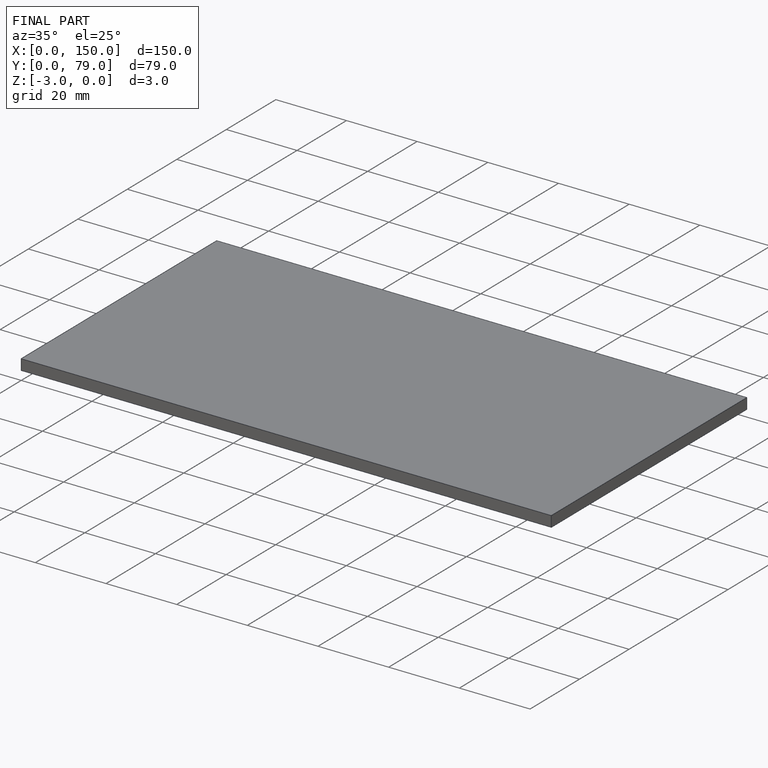
[diagram: finished part — iso view with bounding-box wireframe]
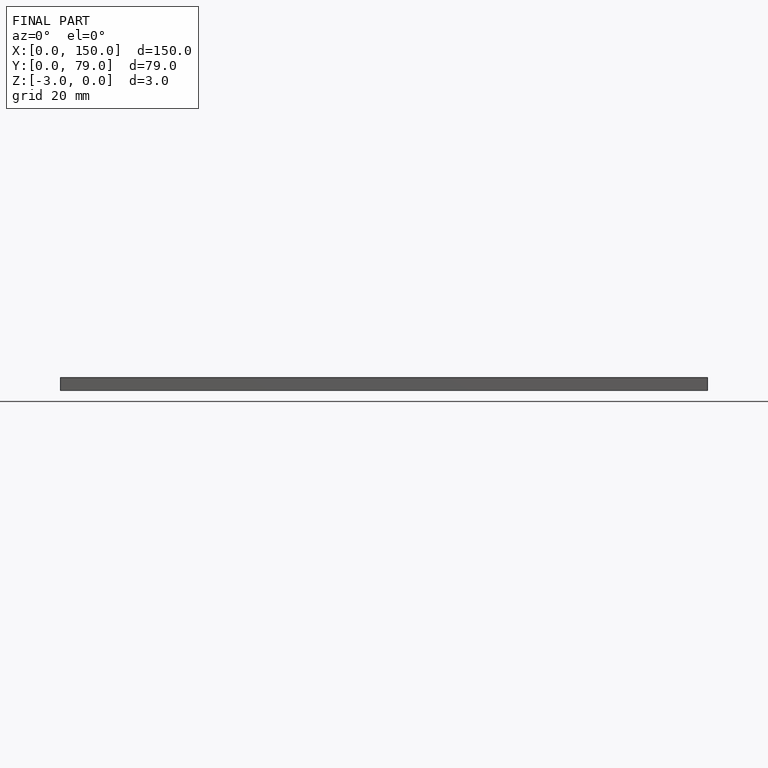
[diagram: finished part — front view with bounding-box wireframe]
